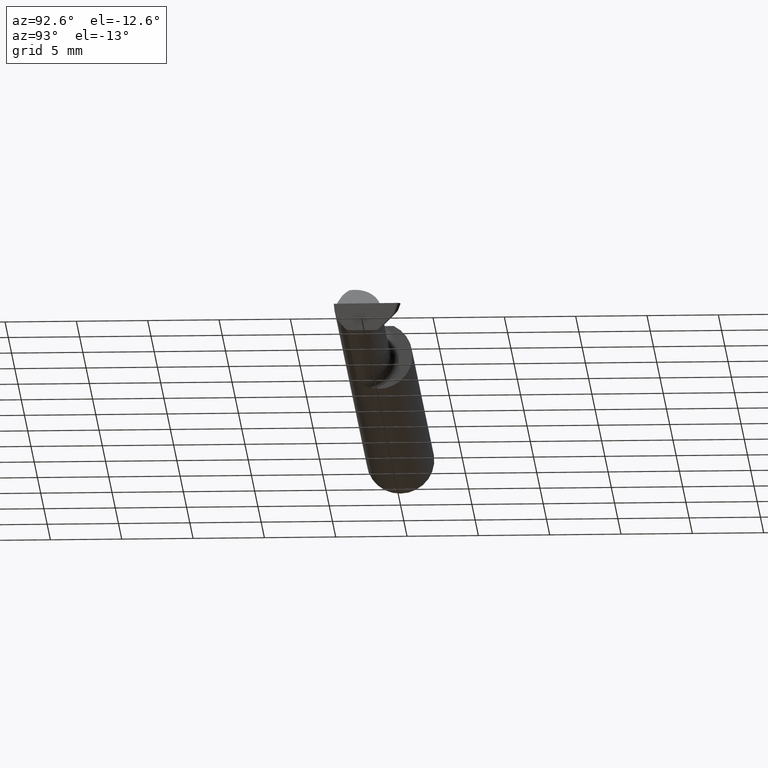
[diagram: clean part render]
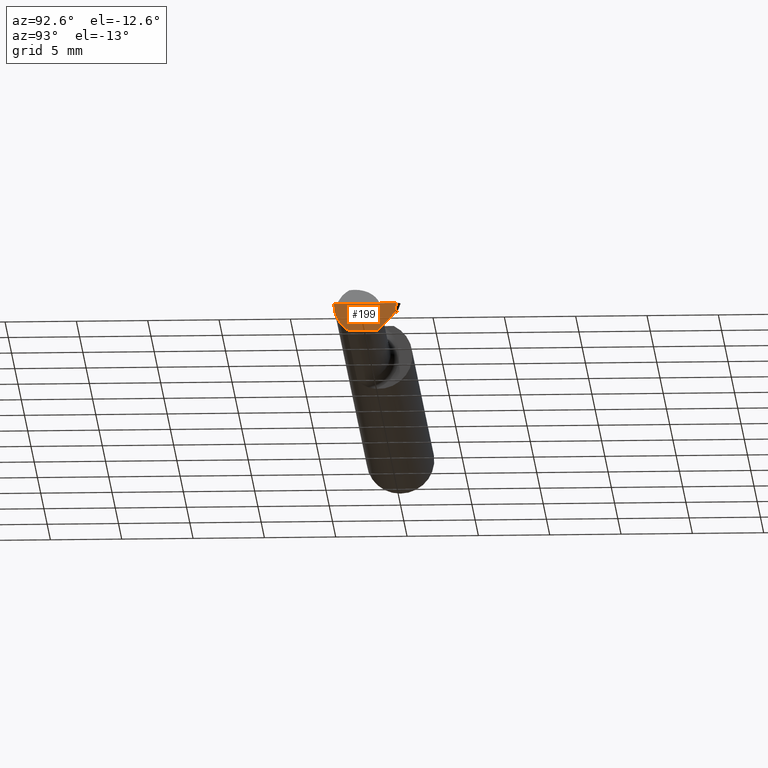
[diagram: same view with one face highlighted and labeled with its STEP entity id]
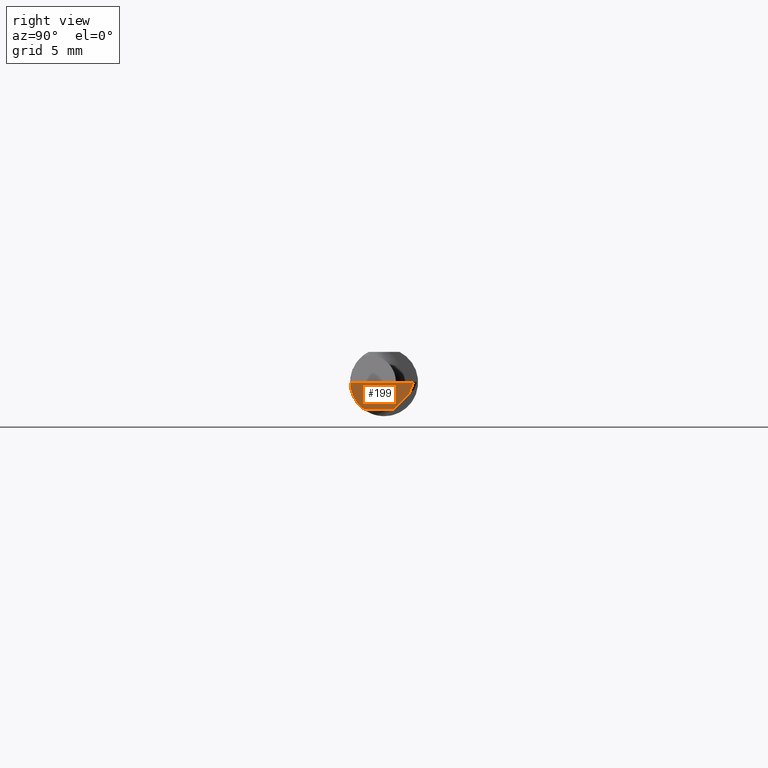
[diagram: same view with one face highlighted and labeled with its STEP entity id]
A machine part, auxiliary view. The second image highlights one B-rep face of the part: STEP entity #199.
A second angle (right view) of the same face is appended — the face is thin or edge-on in the first view.
In plain terms, the highlighted planar face has unit normal (-0.9992, 0.0174, 0.0349).
Its self-contained STEP definition (entity closure, byte-faithful):
#11 = VECTOR ( 'NONE', #567, 39.37007874015748854 ) ;
#26 = PLANE ( 'NONE',  #626 ) ;
#47 = EDGE_CURVE ( 'NONE', #463, #418, #454, .T. ) ;
#73 = DIRECTION ( 'NONE',  ( 0.03490480639812536257, 0.000000000000000000, 0.9993906415863165194 ) ) ;
#136 = DIRECTION ( 'NONE',  ( -0.9992386149554827179, 0.01744177490282310811, 0.03489949670250104552 ) ) ;
#140 = CARTESIAN_POINT ( 'NONE',  ( 1.996630704565214964, 0.03119062438263836903, -0.07129394116630433098 ) ) ;
#154 = ORIENTED_EDGE ( 'NONE', *, *, #387, .T. ) ;
#157 = LINE ( 'NONE', #654, #202 ) ;
#162 = CARTESIAN_POINT ( 'NONE',  ( 1.996942494641693600, -0.09360000000000001652, 0.000000000000000000 ) ) ;
#163 = VERTEX_POINT ( 'NONE', #294 ) ;
#175 = CARTESIAN_POINT ( 'NONE',  ( 1.999990968925781987, 0.08104697476785366339, 0.000000000000000000 ) ) ;
#176 = ORIENTED_EDGE ( 'NONE', *, *, #241, .F. ) ;
#199 = ADVANCED_FACE ( 'NONE', ( #769 ), #26, .F. ) ;
#202 = VECTOR ( 'NONE', #663, 39.37007874015748854 ) ;
#204 = CARTESIAN_POINT ( 'NONE',  ( 1.999998665932175124, 0.08148793596879662371, 0.000000000000000000 ) ) ;
#206 = LINE ( 'NONE', #140, #469 ) ;
#207 = ORIENTED_EDGE ( 'NONE', *, *, #47, .F. ) ;
#213 = CARTESIAN_POINT ( 'NONE',  ( 1.996436576927335116, 0.02748456554894272708, -0.07500000000000002498 ) ) ;
#216 = VERTEX_POINT ( 'NONE', #213 ) ;
#241 = EDGE_CURVE ( 'NONE', #216, #163, #705, .T. ) ;
#252 = EDGE_CURVE ( 'NONE', #724, #216, #206, .T. ) ;
#294 = CARTESIAN_POINT ( 'NONE',  ( 1.995213246285213016, -0.04259999999999980469, -0.07500000000000002498 ) ) ;
#306 = CARTESIAN_POINT ( 'NONE',  ( 1.994999172194938941, -0.05810704225352111146, -0.07337936794867830348 ) ) ;
#308 = CARTESIAN_POINT ( 'NONE',  ( 1.999998665932175124, 0.08148793596879662371, 0.000000000000000000 ) ) ;
#316 = CARTESIAN_POINT ( 'NONE',  ( 1.994999172194938941, -0.05810704225352111146, -0.07337936794867830348 ) ) ;
#319 = CARTESIAN_POINT ( 'NONE',  ( 1.995250001108639148, -0.04049431757617889815, -0.07500000000000002498 ) ) ;
#339 = EDGE_LOOP ( 'NONE', ( #428, #154, #373, #207, #776, #176 ) ) ;
#358 = VECTOR ( 'NONE', #446, 39.37007874015748143 ) ;
#373 = ORIENTED_EDGE ( 'NONE', *, *, #755, .T. ) ;
#378 = CARTESIAN_POINT ( 'NONE',  ( 1.995925902212489333, -0.09359999999999997489, -0.02910696448121682239 ) ) ;
#382 = LINE ( 'NONE', #308, #358 ) ;
#387 = EDGE_CURVE ( 'NONE', #724, #433, #157, .T. ) ;
#418 = VERTEX_POINT ( 'NONE', #162 ) ;
#422 = CARTESIAN_POINT ( 'NONE',  ( 1.994999172194938941, -0.05810704225352111146, -0.07337936794867830348 ) ) ;
#425 = CARTESIAN_POINT ( 'NONE',  ( 1.996942494641693600, -0.09360000000000001652, 0.000000000000000000 ) ) ;
#428 = ORIENTED_EDGE ( 'NONE', *, *, #252, .F. ) ;
#433 = VERTEX_POINT ( 'NONE', #175 ) ;
#446 = DIRECTION ( 'NONE',  ( -0.01745240643727645827, -0.9998476951563912696, 0.000000000000000000 ) ) ;
#451 = EDGE_CURVE ( 'NONE', #463, #163, #535, .T. ) ;
#454 =( BOUNDED_CURVE ( )  B_SPLINE_CURVE ( 3, ( #316, #547, #378, #425 ),
 .UNSPECIFIED., .F., .T. ) 
 B_SPLINE_CURVE_WITH_KNOTS ( ( 4, 4 ),
 ( 0.2063001339125313249, 1.107331509589561058 ),
 .UNSPECIFIED. ) 
 CURVE ( )  GEOMETRIC_REPRESENTATION_ITEM ( )  RATIONAL_B_SPLINE_CURVE ( ( 1.000000000000000000, 0.9334817841311873199, 0.9334817841311873199, 1.000000000000000000 ) ) 
 REPRESENTATION_ITEM ( '' )  );
#463 = VERTEX_POINT ( 'NONE', #306 ) ;
#469 = VECTOR ( 'NONE', #765, 39.37007874015748143 ) ;
#535 =( BOUNDED_CURVE ( )  B_SPLINE_CURVE ( 3, ( #422, #681, #802, #629 ),
 .UNSPECIFIED., .F., .T. ) 
 B_SPLINE_CURVE_WITH_KNOTS ( ( 4, 4 ),
 ( 0.2552020043920794623, 0.4634648172053393300 ),
 .UNSPECIFIED. ) 
 CURVE ( )  GEOMETRIC_REPRESENTATION_ITEM ( )  RATIONAL_B_SPLINE_CURVE ( ( 1.000000000000000000, 0.9963888149483994816, 0.9963888149483994816, 1.000000000000000000 ) ) 
 REPRESENTATION_ITEM ( '' )  );
#547 = CARTESIAN_POINT ( 'NONE',  ( 1.995231968854677573, -0.08092595952420826577, -0.05530971394246245176 ) ) ;
#567 = DIRECTION ( 'NONE',  ( -0.01745240643727645827, -0.9998476951563912696, 0.000000000000000000 ) ) ;
#626 = AXIS2_PLACEMENT_3D ( 'NONE', #204, #136, #73 ) ;
#629 = CARTESIAN_POINT ( 'NONE',  ( 1.995213246285213016, -0.04259999999999980469, -0.07500000000000002498 ) ) ;
#654 = CARTESIAN_POINT ( 'NONE',  ( 1.999996821881227627, 0.08109858189432718467, 0.0001417894146689394248 ) ) ;
#663 = DIRECTION ( 'NONE',  ( 0.03876062227022340073, 0.3417631236437465025, 0.9389864650134709390 ) ) ;
#681 = CARTESIAN_POINT ( 'NONE',  ( 1.995050583981878400, -0.05300374992736053142, -0.07445783144524574515 ) ) ;
#698 = CARTESIAN_POINT ( 'NONE',  ( 1.998599639583657162, 0.06877923926384972575, -0.03370532628509256834 ) ) ;
#705 = LINE ( 'NONE', #319, #11 ) ;
#724 = VERTEX_POINT ( 'NONE', #698 ) ;
#755 = EDGE_CURVE ( 'NONE', #433, #418, #382, .T. ) ;
#765 = DIRECTION ( 'NONE',  ( -0.03701368837992445593, -0.7066222423871552083, -0.7066222423871628688 ) ) ;
#769 = FACE_OUTER_BOUND ( 'NONE', #339, .T. ) ;
#776 = ORIENTED_EDGE ( 'NONE', *, *, #451, .T. ) ;
#802 = CARTESIAN_POINT ( 'NONE',  ( 1.995122200632949427, -0.04781600192481513800, -0.07500000000000002498 ) ) ;